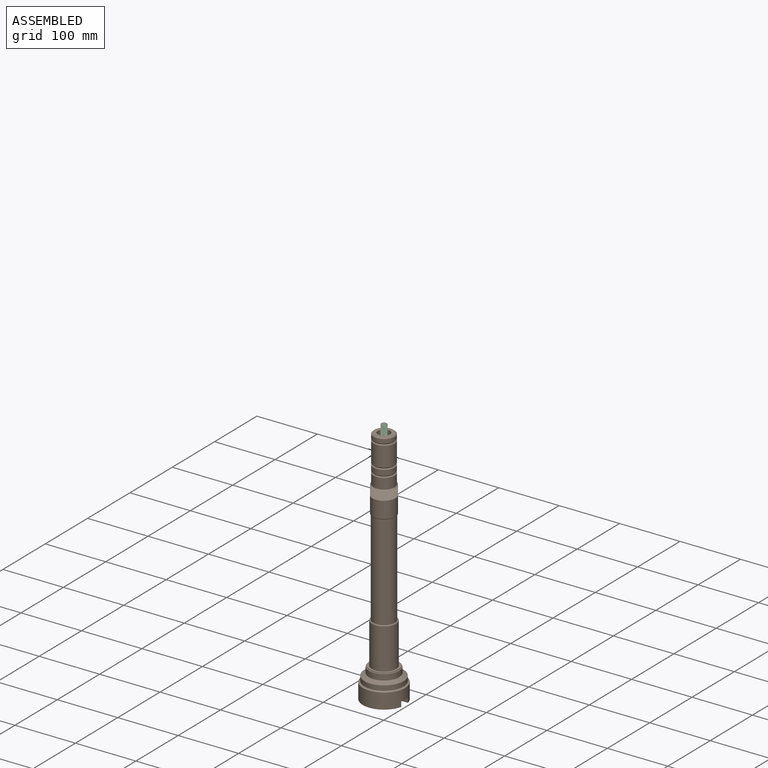
[diagram: assembled view]
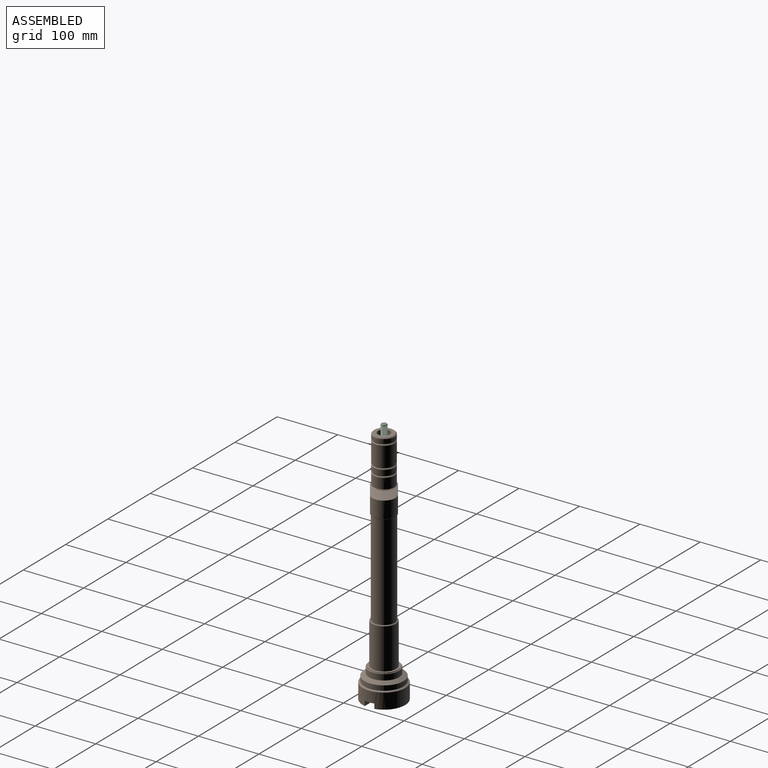
[diagram: assembled view, second angle]
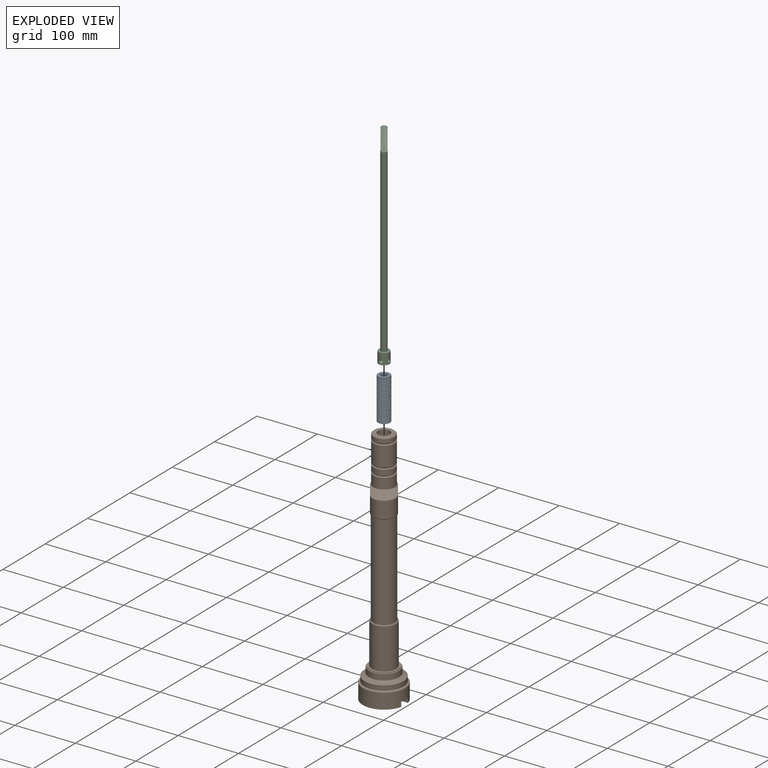
[diagram: exploded view]
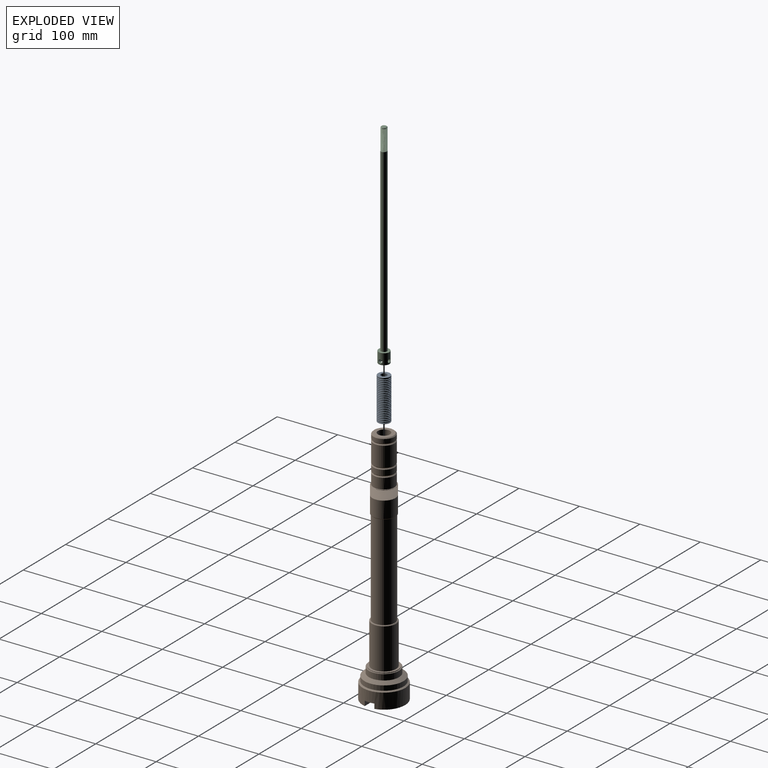
[diagram: exploded view, second angle]
ASSEMBLY  parts=3 mates=2
PART A: 104 faces, bbox 20x20x69 mm
  f0: cylinder r=10mm len=20mm, axis (0,0,-1), area 50.3mm2, adj f1,f2
  f1: plane 20x20mm, normal (0,0,-1), area 232.4mm2, adj f0,f103
  f2: cone r=5.15mm half-angle=83.5deg, axis (0,0,-1), area 232.3mm2, adj f0,f10
  f3: plane 20x20mm, normal (0,0,1), area 232.4mm2, adj f4,f103
  f4: cylinder r=10mm len=20mm, axis (0,0,-1), area 144.5mm2, adj f3,f5
  f5: cone r=9.99mm half-angle=89.5deg, axis (0,0,1), area 0.6mm2, adj f4,f6
  f6: cone r=5.15mm half-angle=83.5deg, axis (0,0,1), area 231.7mm2, adj f5,f102
  f7: cylinder r=10mm len=20mm, axis (0,0,-1), area 100.5mm2, adj f8,f9
  f8: cone r=5.15mm half-angle=83.5deg, axis (0,0,-1), area 232.3mm2, adj f7,f14
  f9: cone r=9.99mm half-angle=89.5deg, axis (0,0,1), area 0.6mm2, adj f7,f10
  f10: cone r=5.15mm half-angle=83.5deg, axis (0,0,1), area 231.7mm2, adj f2,f9
  f11: cylinder r=10mm len=20mm, axis (0,0,-1), area 100.5mm2, adj f12,f13
  f12: cone r=5.15mm half-angle=83.5deg, axis (0,0,-1), area 232.3mm2, adj f11,f18
  f13: cone r=9.99mm half-angle=89.5deg, axis (0,0,1), area 0.6mm2, adj f11,f14
  f14: cone r=5.15mm half-angle=83.5deg, axis (0,0,1), area 231.7mm2, adj f8,f13
  f15: cylinder r=10mm len=20mm, axis (0,0,-1), area 100.5mm2, adj f16,f17
  f16: cone r=5.15mm half-angle=83.5deg, axis (0,0,-1), area 232.3mm2, adj f15,f22
  f17: cone r=9.99mm half-angle=89.5deg, axis (0,0,1), area 0.6mm2, adj f15,f18
  f18: cone r=5.15mm half-angle=83.5deg, axis (0,0,1), area 231.7mm2, adj f12,f17
  f19: cylinder r=10mm len=20mm, axis (0,0,-1), area 100.5mm2, adj f20,f21
  f20: cone r=5.15mm half-angle=83.5deg, axis (0,0,-1), area 232.3mm2, adj f19,f26
  f21: cone r=9.99mm half-angle=89.5deg, axis (0,0,1), area 0.6mm2, adj f19,f22
  f22: cone r=5.15mm half-angle=83.5deg, axis (0,0,1), area 231.7mm2, adj f16,f21
  f23: cylinder r=10mm len=20mm, axis (0,0,-1), area 100.5mm2, adj f24,f25
  f24: cone r=5.15mm half-angle=83.5deg, axis (0,0,-1), area 232.3mm2, adj f23,f30
  f25: cone r=9.99mm half-angle=89.5deg, axis (0,0,1), area 0.6mm2, adj f23,f26
  f26: cone r=5.15mm half-angle=83.5deg, axis (0,0,1), area 231.7mm2, adj f20,f25
  f27: cylinder r=10mm len=20mm, axis (0,0,-1), area 100.5mm2, adj f28,f29
  f28: cone r=5.15mm half-angle=83.5deg, axis (0,0,-1), area 232.3mm2, adj f27,f34
  f29: cone r=9.99mm half-angle=89.5deg, axis (0,0,1), area 0.6mm2, adj f27,f30
  f30: cone r=5.15mm half-angle=83.5deg, axis (0,0,1), area 231.7mm2, adj f24,f29
  f31: cylinder r=10mm len=20mm, axis (0,0,-1), area 100.5mm2, adj f32,f33
  f32: cone r=5.15mm half-angle=83.5deg, axis (0,0,-1), area 232.3mm2, adj f31,f38
  f33: cone r=9.99mm half-angle=89.5deg, axis (0,0,1), area 0.6mm2, adj f31,f34
  f34: cone r=5.15mm half-angle=83.5deg, axis (0,0,1), area 231.7mm2, adj f28,f33
  f35: cylinder r=10mm len=20mm, axis (0,0,-1), area 100.5mm2, adj f36,f37
  f36: cone r=5.15mm half-angle=83.5deg, axis (0,0,-1), area 232.3mm2, adj f35,f42
  f37: cone r=9.99mm half-angle=89.5deg, axis (0,0,1), area 0.6mm2, adj f35,f38
  f38: cone r=5.15mm half-angle=83.5deg, axis (0,0,1), area 231.7mm2, adj f32,f37
  f39: cylinder r=10mm len=20mm, axis (0,0,-1), area 100.5mm2, adj f40,f41
  f40: cone r=5.15mm half-angle=83.5deg, axis (0,0,-1), area 232.3mm2, adj f39,f46
  f41: cone r=9.99mm half-angle=89.5deg, axis (0,0,1), area 0.6mm2, adj f39,f42
  f42: cone r=5.15mm half-angle=83.5deg, axis (0,0,1), area 231.7mm2, adj f36,f41
  f43: cylinder r=10mm len=20mm, axis (0,0,-1), area 100.5mm2, adj f44,f45
  f44: cone r=5.15mm half-angle=83.5deg, axis (0,0,-1), area 232.3mm2, adj f43,f50
  f45: cone r=9.99mm half-angle=89.5deg, axis (0,0,1), area 0.6mm2, adj f43,f46
  f46: cone r=5.15mm half-angle=83.5deg, axis (0,0,1), area 231.7mm2, adj f40,f45
  f47: cylinder r=10mm len=20mm, axis (0,0,-1), area 100.5mm2, adj f48,f49
  f48: cone r=5.15mm half-angle=83.5deg, axis (0,0,-1), area 232.3mm2, adj f47,f54
  f49: cone r=9.99mm half-angle=89.5deg, axis (0,0,1), area 0.6mm2, adj f47,f50
  f50: cone r=5.15mm half-angle=83.5deg, axis (0,0,1), area 231.7mm2, adj f44,f49
  f51: cylinder r=10mm len=20mm, axis (0,0,-1), area 100.5mm2, adj f52,f53
  f52: cone r=5.15mm half-angle=83.5deg, axis (0,0,-1), area 232.3mm2, adj f51,f58
  f53: cone r=9.99mm half-angle=89.5deg, axis (0,0,1), area 0.6mm2, adj f51,f54
  f54: cone r=5.15mm half-angle=83.5deg, axis (0,0,1), area 231.7mm2, adj f48,f53
  f55: cylinder r=10mm len=20mm, axis (0,0,-1), area 100.5mm2, adj f56,f57
  f56: cone r=5.15mm half-angle=83.5deg, axis (0,0,-1), area 232.3mm2, adj f55,f62
  f57: cone r=9.99mm half-angle=89.5deg, axis (0,0,1), area 0.6mm2, adj f55,f58
  f58: cone r=5.15mm half-angle=83.5deg, axis (0,0,1), area 231.7mm2, adj f52,f57
  f59: cylinder r=10mm len=20mm, axis (0,0,-1), area 100.5mm2, adj f60,f61
  f60: cone r=5.15mm half-angle=83.5deg, axis (0,0,-1), area 232.3mm2, adj f59,f66
  f61: cone r=9.99mm half-angle=89.5deg, axis (0,0,1), area 0.6mm2, adj f59,f62
  f62: cone r=5.15mm half-angle=83.5deg, axis (0,0,1), area 231.7mm2, adj f56,f61
  f63: cylinder r=10mm len=20mm, axis (0,0,-1), area 100.5mm2, adj f64,f65
  f64: cone r=5.15mm half-angle=83.5deg, axis (0,0,-1), area 232.3mm2, adj f63,f70
  f65: cone r=9.99mm half-angle=89.5deg, axis (0,0,1), area 0.6mm2, adj f63,f66
  f66: cone r=5.15mm half-angle=83.5deg, axis (0,0,1), area 231.7mm2, adj f60,f65
  f67: cylinder r=10mm len=20mm, axis (0,0,-1), area 100.5mm2, adj f68,f69
  f68: cone r=5.15mm half-angle=83.5deg, axis (0,0,-1), area 232.3mm2, adj f67,f74
  f69: cone r=9.99mm half-angle=89.5deg, axis (0,0,1), area 0.6mm2, adj f67,f70
  f70: cone r=5.15mm half-angle=83.5deg, axis (0,0,1), area 231.7mm2, adj f64,f69
  f71: cylinder r=10mm len=20mm, axis (0,0,-1), area 100.5mm2, adj f72,f73
  f72: cone r=5.15mm half-angle=83.5deg, axis (0,0,-1), area 232.3mm2, adj f71,f78
  f73: cone r=9.99mm half-angle=89.5deg, axis (0,0,1), area 0.6mm2, adj f71,f74
  f74: cone r=5.15mm half-angle=83.5deg, axis (0,0,1), area 231.7mm2, adj f68,f73
  f75: cylinder r=10mm len=20mm, axis (0,0,-1), area 100.5mm2, adj f76,f77
  f76: cone r=5.15mm half-angle=83.5deg, axis (0,0,-1), area 232.3mm2, adj f75,f82
  f77: cone r=9.99mm half-angle=89.5deg, axis (0,0,1), area 0.6mm2, adj f75,f78
  f78: cone r=5.15mm half-angle=83.5deg, axis (0,0,1), area 231.7mm2, adj f72,f77
  f79: cylinder r=10mm len=20mm, axis (0,0,-1), area 100.5mm2, adj f80,f81
  f80: cone r=5.15mm half-angle=83.5deg, axis (0,0,-1), area 232.3mm2, adj f79,f86
  f81: cone r=9.99mm half-angle=89.5deg, axis (0,0,1), area 0.6mm2, adj f79,f82
  f82: cone r=5.15mm half-angle=83.5deg, axis (0,0,1), area 231.7mm2, adj f76,f81
  f83: cylinder r=10mm len=20mm, axis (0,0,-1), area 100.5mm2, adj f84,f85
  f84: cone r=5.15mm half-angle=83.5deg, axis (0,0,-1), area 232.3mm2, adj f83,f90
  f85: cone r=9.99mm half-angle=89.5deg, axis (0,0,1), area 0.6mm2, adj f83,f86
  f86: cone r=5.15mm half-angle=83.5deg, axis (0,0,1), area 231.7mm2, adj f80,f85
  f87: cylinder r=10mm len=20mm, axis (0,0,-1), area 100.5mm2, adj f88,f89
  f88: cone r=5.15mm half-angle=83.5deg, axis (0,0,-1), area 232.3mm2, adj f87,f93
  f89: cone r=9.99mm half-angle=89.5deg, axis (0,0,1), area 0.6mm2, adj f87,f90
  f90: cone r=5.15mm half-angle=83.5deg, axis (0,0,1), area 231.7mm2, adj f84,f89
  f91: cylinder r=10mm len=20mm, axis (0,0,-1), area 100.5mm2, adj f92,f94
  f92: cone r=9.99mm half-angle=89.5deg, axis (0,0,1), area 0.6mm2, adj f91,f93
  f93: cone r=5.15mm half-angle=83.5deg, axis (0,0,1), area 231.7mm2, adj f88,f92
  f94: cone r=5.15mm half-angle=83.5deg, axis (0,0,-1), area 232.3mm2, adj f91,f98
  f95: cylinder r=10mm len=20mm, axis (0,0,-1), area 100.5mm2, adj f96,f97
  f96: cone r=5.15mm half-angle=83.5deg, axis (0,0,-1), area 232.3mm2, adj f95,f101
  f97: cone r=9.99mm half-angle=89.5deg, axis (0,0,1), area 0.6mm2, adj f95,f98
  f98: cone r=5.15mm half-angle=83.5deg, axis (0,0,1), area 231.7mm2, adj f94,f97
  f99: cylinder r=10mm len=20mm, axis (0,0,-1), area 100.5mm2, adj f100,f102
  f100: cone r=9.99mm half-angle=89.5deg, axis (0,0,1), area 0.6mm2, adj f99,f101
  f101: cone r=5.15mm half-angle=83.5deg, axis (0,0,1), area 231.7mm2, adj f96,f100
  f102: cone r=5.15mm half-angle=83.5deg, axis (0,0,-1), area 232.3mm2, adj f6,f99
  f103: cylinder r=5.1mm len=69mm, axis (0,0,1), area 2211.1mm2, adj f1,f3
PART B: 70 faces, bbox 146x146x474 mm
  f0: cylinder r=8.5mm len=241.5mm, axis (0,0,-1), area 12897.8mm2, adj f65,f69
  f1: cylinder r=19mm len=38mm, axis (0,0,-1), area 16.4mm2, adj f2,f55,f56
  f2: plane 39.34x38.6mm, normal (0,0,1), area 128.4mm2, adj f1,f19,f55,f56
  f3: cylinder r=17.5mm len=35mm, axis (0,0,-1), area 732.3mm2, adj f40,f44,f49,f51,f52
  f4: plane 68.15x27mm, normal (0,0,-1), area 1119.7mm2, adj f5,f6,f28,f29,f36,f38
  f5: cone r=8.5mm half-angle=8.3deg, axis (0,0,-1), area 3384.6mm2, adj f4,f8,f26,f27,f28,f29,f30,f31
  f6: cylinder r=35mm len=70mm, axis (0,0,-1), area 5349.5mm2, adj f4,f8,f21,f26,f27,f28,f29,f30
  f7: plane 64.6x64.6mm, normal (0,0,1), area 10.1mm2, adj f9,f21
  f8: plane 68.15x27mm, normal (0,0,-1), area 1119.7mm2, adj f5,f6,f27,f30,f32,f34
  f9: cylinder r=32.25mm len=64.5mm, axis (0,0,-1), area 1621.1mm2, adj f7,f22
  f10: plane 50.1x50.1mm, normal (0,0,1), area 7.9mm2, adj f11,f22
  f11: cylinder r=25mm len=50mm, axis (0,0,-1), area 1492.3mm2, adj f10,f23
  f12: plane 49x49mm, normal (0,0,1), area 150.8mm2, adj f13,f23
  f13: cylinder r=23.5mm len=47mm, axis (0,0,-1), area 147.7mm2, adj f12,f14
  f14: plane 47x47mm, normal (0,0,1), area 478.3mm2, adj f13,f15
  f15: cylinder r=20mm len=67.5mm, axis (0,0,-1), area 8482.3mm2, adj f14,f24
  f16: plane 38x38mm, normal (0,0,1), area 116.2mm2, adj f17,f24
  f17: cylinder r=18mm len=158mm, axis (0,0,-1), area 17869.4mm2, adj f16,f25
  f18: cylinder r=19mm len=38mm, axis (0,0,-1), area 3381.1mm2, adj f25,f54,f57
  f19: cylinder r=17.5mm len=35mm, axis (0,0,-1), area 1878.7mm2, adj f2,f41,f50,f51,f52
  f20: plane 32x32mm, normal (0,0,1), area 490.1mm2, adj f40,f68
  f21: cone r=32.3mm half-angle=60.9deg, axis (0,0,-1), area 653mm2, adj f6,f7
  f22: cone r=25.05mm half-angle=60.9deg, axis (0,0,-1), area 1482.7mm2, adj f9,f10
  f23: cone r=24.5mm half-angle=45deg, axis (0,0,-1), area 110mm2, adj f11,f12
  f24: cone r=19mm half-angle=45deg, axis (0,0,-1), area 173.3mm2, adj f15,f16
  f25: cone r=19mm half-angle=45deg, axis (0,0,1), area 164.4mm2, adj f17,f18
  f26: plane 22.8x16mm, normal (0,0,-1), area 305.7mm2, adj f5,f6,f27,f28,f60
  f27: plane 21.91x8.03mm, normal (0,1,0), area 169.5mm2, adj f5,f6,f8,f26
  f28: plane 21.91x8.03mm, normal (0,-1,0), area 169.5mm2, adj f4,f5,f6,f26
  f29: plane 21.91x8.03mm, normal (0,-1,0), area 169.5mm2, adj f4,f5,f6,f31
  f30: plane 21.91x8.03mm, normal (0,1,0), area 169.5mm2, adj f5,f6,f8,f31
  f31: plane 22.8x16mm, normal (0,0,-1), area 305.7mm2, adj f5,f6,f29,f30,f58
  f32: cylinder r=4mm len=15mm, axis (0,0,-1), area 377mm2, adj f8,f33
  f33: plane 8x8mm, normal (0,0,-1), area 50.3mm2, adj f32
  f34: cylinder r=4mm len=15mm, axis (0,0,-1), area 377mm2, adj f8,f35
  f35: plane 8x8mm, normal (0,0,-1), area 50.3mm2, adj f34
  f36: cylinder r=4mm len=15mm, axis (0,0,-1), area 377mm2, adj f4,f37
  f37: plane 8x8mm, normal (0,0,-1), area 50.3mm2, adj f36
  f38: cylinder r=4mm len=15mm, axis (0,0,-1), area 377mm2, adj f4,f39
  f39: plane 8x8mm, normal (0,0,-1), area 50.3mm2, adj f38
  f40: cone r=16mm half-angle=45deg, axis (0,0,-1), area 223.3mm2, adj f3,f20
  f41: cone r=16mm half-angle=45deg, axis (0,0,-1), area 206.1mm2, adj f19,f42,f51,f52
  f42: cone r=16mm half-angle=45deg, axis (0,0,1), area 206.1mm2, adj f41,f45,f51,f52
  f43: cone r=16mm half-angle=45deg, axis (0,0,-1), area 206.1mm2, adj f44,f46,f51,f52
  f44: cone r=16mm half-angle=45deg, axis (0,0,1), area 206.1mm2, adj f3,f43,f51,f52
  f45: cylinder r=17.5mm len=35mm, axis (0,0,-1), area 917mm2, adj f42,f47,f51,f52
  f46: cylinder r=17.5mm len=35mm, axis (0,0,-1), area 3362.2mm2, adj f43,f48,f51,f52
  f47: cone r=16mm half-angle=45deg, axis (0,0,-1), area 206.1mm2, adj f45,f48,f51,f52
  f48: cone r=16mm half-angle=45deg, axis (0,0,1), area 206.1mm2, adj f46,f47,f51,f52
  f49: cylinder r=4mm len=8mm, axis (-1,0,0), area 50.7mm2, adj f3,f51,f52,f53
  f50: cylinder r=4mm len=8mm, axis (-1,0,0), area 50.7mm2, adj f19,f51,f52,f53
  f51: plane 55.02x4.05mm, normal (0,1,0), area 215.1mm2, adj f3,f19,f41,f42,f43,f44,f45,f46
  f52: plane 55.02x4.05mm, normal (0,-1,0), area 215.1mm2, adj f3,f19,f41,f42,f43,f44,f45,f46
  f53: plane 63x8mm, normal (-1,0,0), area 490.3mm2, adj f49,f50,f51,f52
  f54: plane 77.44x77.1mm, normal (-0.28,-0.96,0), area 0.8mm2, adj f18,f56,f57
  f55: plane 1.5x0.55mm, normal (0,-1,0), area 0.4mm2, adj f1,f2,f57
  f56: bspline ~43.88x38mm, area 2617.1mm2, adj f1,f2,f54,f57
  f57: bspline ~43.88x38mm, area 2485.3mm2, adj f18,f54,f55,f56
  f58: cylinder r=3mm len=15mm, axis (0,0,-1), area 282.7mm2, adj f31,f59
  f59: plane 6x6mm, normal (0,0,-1), area 28.3mm2, adj f58
  f60: cylinder r=3mm len=15mm, axis (0,0,-1), area 282.7mm2, adj f26,f61
  f61: plane 6x6mm, normal (0,0,-1), area 28.3mm2, adj f60
  f62: cylinder r=9mm len=18mm, axis (0,0,1), area 110.2mm2, adj f5,f66
  f63: cone r=9mm half-angle=45deg, axis (0,0,-1), area 227.7mm2, adj f64,f67
  f64: cylinder r=9mm len=20mm, axis (0,0,1), area 1131mm2, adj f63,f65
  f65: plane 18x18mm, normal (0,0,-1), area 27.5mm2, adj f0,f64
  f66: cone r=11.5mm half-angle=45deg, axis (0,0,1), area 227.7mm2, adj f62,f67
  f67: cylinder r=11.5mm len=23mm, axis (0,0,1), area 216.8mm2, adj f63,f66
  f68: cylinder r=10mm len=80mm, axis (0,0,1), area 5026.5mm2, adj f20,f69
  f69: plane 20x20mm, normal (0,0,1), area 87.2mm2, adj f0,f68
PART C: 24 faces, bbox 18x353x18 mm
  f0: cylinder r=5mm len=299.72mm, axis (0,-1,0), area 9392.4mm2, adj f3,f14,f15
  f1: cylinder r=5mm len=13mm, axis (0,1,0), area 315.9mm2, adj f4,f5,f7,f9,f11,f13
  f2: cylinder r=9mm len=18mm, axis (0,1,0), area 903.3mm2, adj f3,f4,f6,f8,f10,f12
  f3: plane 18x18mm, normal (0,1,0), area 175.9mm2, adj f0,f2
  f4: plane 18x18mm, normal (0,-1,0), area 175.9mm2, adj f1,f2
  f5: plane 10x10mm, normal (0,-1,0), area 78.5mm2, adj f1
  f6: cylinder r=3mm len=6mm, axis (0,0,1), area 51.7mm2, adj f2,f7
  f7: sphere r=3mm, area 25.5mm2, adj f1,f6
  f8: cylinder r=3mm len=6mm, axis (-1,0,0), area 51.7mm2, adj f2,f9
  f9: sphere r=3mm, area 25.5mm2, adj f1,f8
  f10: cylinder r=3mm len=6mm, axis (0,0,-1), area 51.7mm2, adj f2,f11
  f11: sphere r=3mm, area 25.4mm2, adj f1,f10
  f12: cylinder r=3mm len=6mm, axis (1,0,0), area 51.7mm2, adj f2,f13
  f13: sphere r=3mm, area 25.5mm2, adj f1,f12
  f14: plane 1.53x1.19mm, normal (0.87,0,0.5), area 1.1mm2, adj f0,f15,f18,f19,f20
  f15: bspline ~9.99x9.98mm, area 0.7mm2, adj f0,f14,f20
  f16: plane 1.3x1.23mm, normal (0,0,1), area 0.8mm2, adj f17,f18,f19,f22,f23
  f17: bspline ~10.35x10.24mm, area 0mm2, adj f16,f18,f22,f23
  f18: bspline ~35.75x11.37mm, area 936.5mm2, adj f14,f16,f17,f19,f22
  f19: bspline ~35.75x11.37mm, area 942.8mm2, adj f14,f16,f18,f20
  f20: bspline ~9.95x9.94mm, area 1.9mm2, adj f14,f15,f19
  f21: plane 7.85x7.85mm, normal (0,1,0), area 48.4mm2, adj f22
  f22: cone r=3.92mm half-angle=45deg, axis (0,-1,0), area 34.3mm2, adj f16,f17,f18,f21,f23
  f23: cylinder r=4.92mm len=9.85mm, axis (0,1,0), area 5.8mm2, adj f16,f17,f22
PLACE A t=(-131.13,45.18,294.43)mm
PLACE B t=(-131.13,45.18,-23.57)mm
PLACE C rot(axis=(1,0,0),90deg) t=(-131.13,45.18,52.89)mm
MATE slider C.f2 <-> B.f0  axis (0,0,1) through (-131.13,45.18,52.89)mm
MATE fastened A.f103 <-> B.f0  axis (0,0,-1) through (-131.13,45.18,294.43)mm
